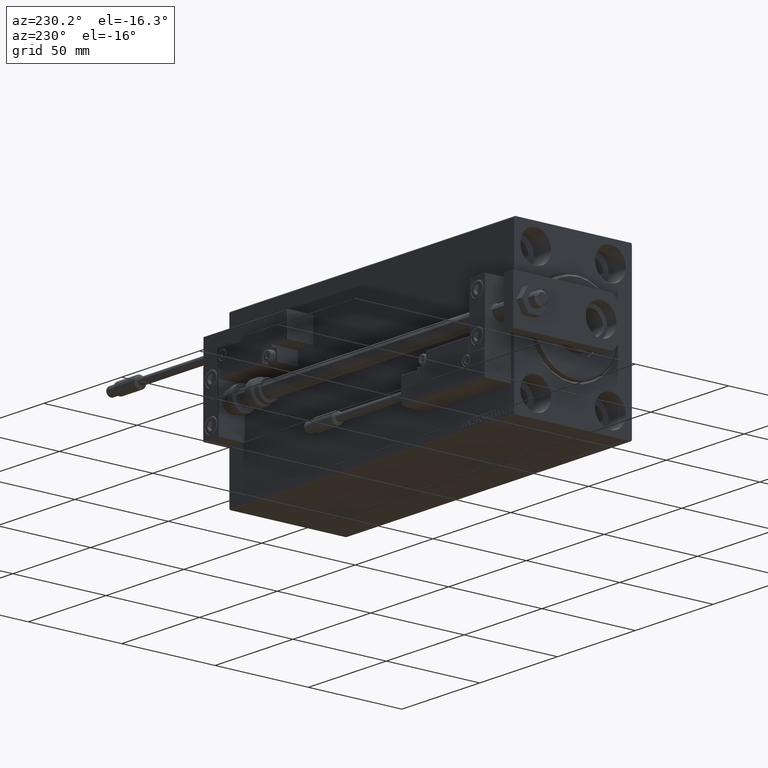
[diagram: clean part render]
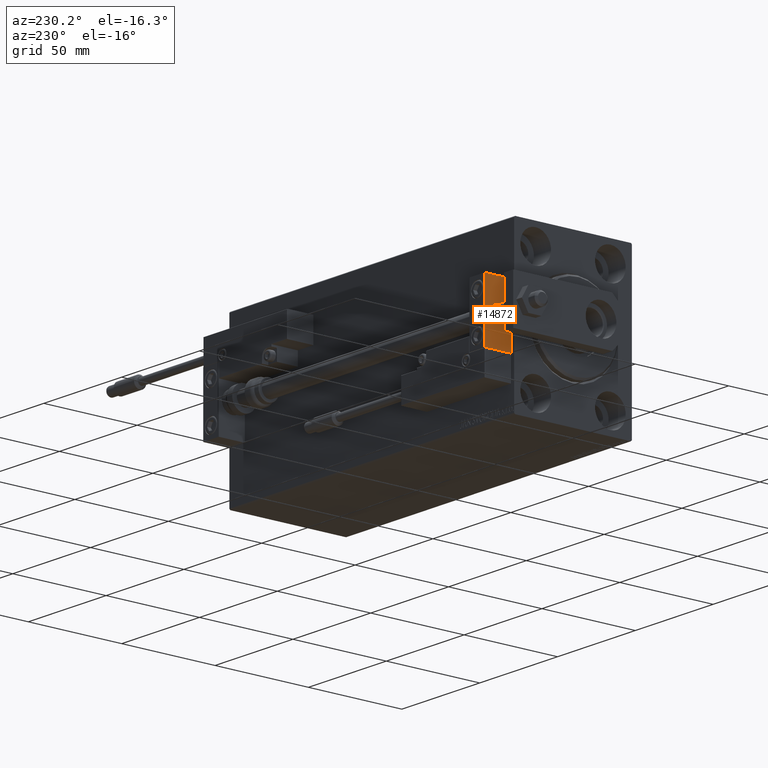
[diagram: same view with one face highlighted and labeled with its STEP entity id]
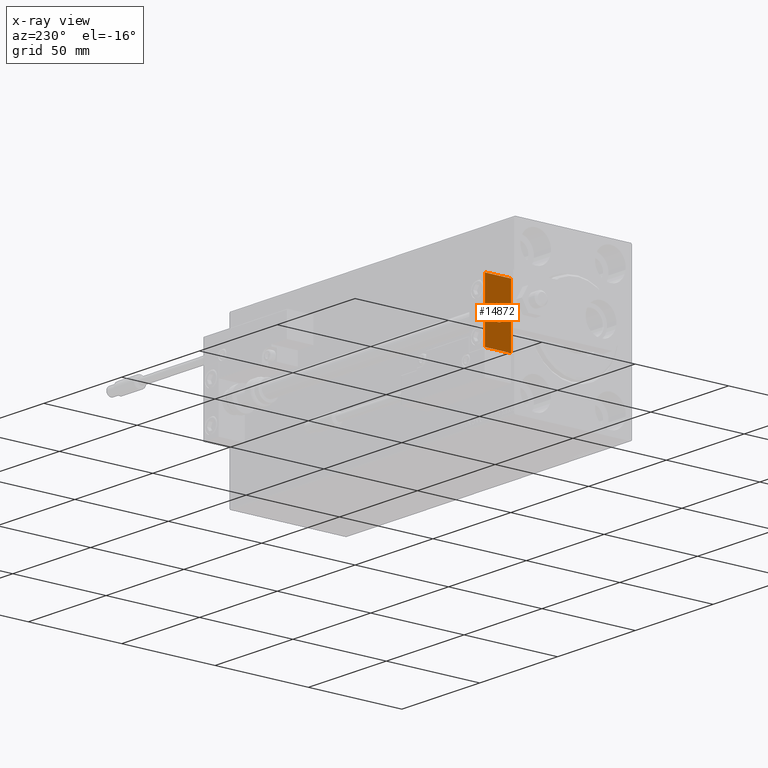
[diagram: x-ray of the same camera — body ghosted, the highlighted face saturated]
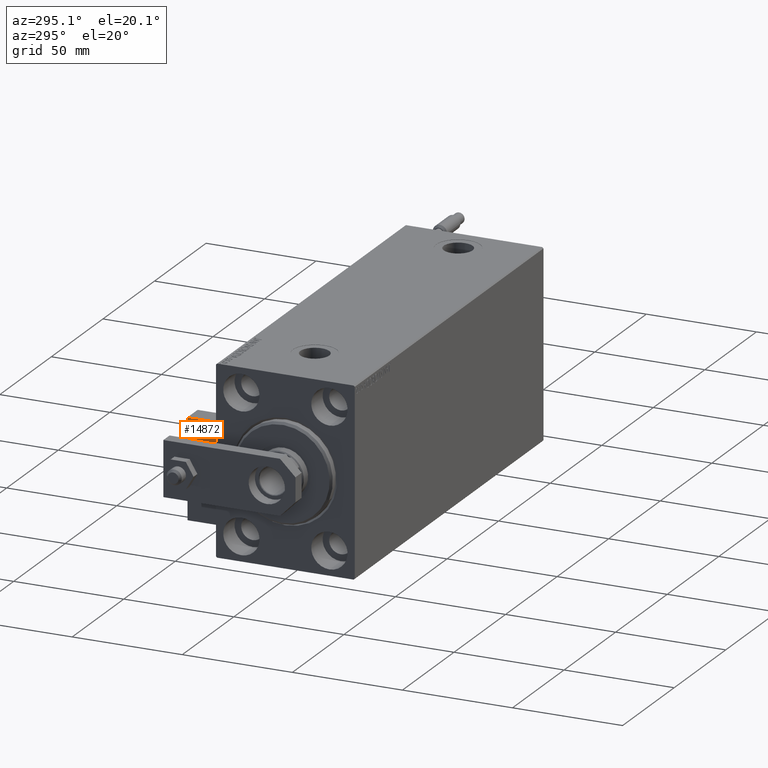
[diagram: same view with one face highlighted and labeled with its STEP entity id]
A machine part, auxiliary view. The second image highlights one B-rep face of the part: STEP entity #14872.
The next image is the same camera in x-ray: the body ghosted, the highlighted face saturated — about 0% of this face is hidden behind the body in this view.
A second angle (auxiliary view) of the same face is appended — the face is thin or edge-on in the first view.
In plain terms, the highlighted planar face has unit normal (1, 0, -0).
Its self-contained STEP definition (entity closure, byte-faithful):
#2277 = LINE ( 'NONE', #45264, #34801 ) ;
#2333 = DIRECTION ( 'NONE',  ( 0.000000000000000000, 0.000000000000000000, -1.000000000000000000 ) ) ;
#2439 = DIRECTION ( 'NONE',  ( -0.000000000000000000, 0.000000000000000000, 1.000000000000000000 ) ) ;
#2643 = VERTEX_POINT ( 'NONE', #47817 ) ;
#2727 = CARTESIAN_POINT ( 'NONE',  ( 10.00000000000000000, -7.000000000000000000, 15.99999999999999289 ) ) ;
#2886 = VERTEX_POINT ( 'NONE', #16535 ) ;
#3194 = FACE_OUTER_BOUND ( 'NONE', #37387, .T. ) ;
#3272 = VERTEX_POINT ( 'NONE', #5467 ) ;
#4312 = ORIENTED_EDGE ( 'NONE', *, *, #6016, .F. ) ;
#5136 = VECTOR ( 'NONE', #2333, 1000.000000000000000 ) ;
#5224 = EDGE_CURVE ( 'NONE', #35429, #2886, #2277, .T. ) ;
#5467 = CARTESIAN_POINT ( 'NONE',  ( 10.00000000000000000, 0.000000000000000000, 4.000000000000000000 ) ) ;
#6016 = EDGE_CURVE ( 'NONE', #2886, #27887, #44011, .T. ) ;
#6301 = ORIENTED_EDGE ( 'NONE', *, *, #46639, .T. ) ;
#6435 = LINE ( 'NONE', #37144, #5136 ) ;
#6557 = VERTEX_POINT ( 'NONE', #2727 ) ;
#8130 = CARTESIAN_POINT ( 'NONE',  ( 10.00000000000000000, -7.000000000000000000, -16.00000000000000711 ) ) ;
#8985 = AXIS2_PLACEMENT_3D ( 'NONE', #34944, #50567, #39034 ) ;
#9028 = CARTESIAN_POINT ( 'NONE',  ( 10.00000000000000000, 7.000000000000000000, 15.99999999999999289 ) ) ;
#10373 = CARTESIAN_POINT ( 'NONE',  ( 10.00000000000000000, 0.000000000000000000, 0.000000000000000000 ) ) ;
#10874 = DIRECTION ( 'NONE',  ( -1.000000000000000000, 0.000000000000000000, -0.000000000000000000 ) ) ;
#11254 = EDGE_CURVE ( 'NONE', #3272, #2643, #42246, .T. ) ;
#11414 = CARTESIAN_POINT ( 'NONE',  ( 10.00000000000000000, 7.000000000000000000, 15.99999999999999289 ) ) ;
#11580 = ORIENTED_EDGE ( 'NONE', *, *, #5224, .F. ) ;
#13722 = ORIENTED_EDGE ( 'NONE', *, *, #40980, .T. ) ;
#14488 = AXIS2_PLACEMENT_3D ( 'NONE', #31321, #40269, #46947 ) ;
#14872 = ADVANCED_FACE ( 'NONE', ( #37749, #3194 ), #42071, .F. ) ;
#16535 = CARTESIAN_POINT ( 'NONE',  ( 10.00000000000000000, 7.000000000000000000, -16.00000000000000711 ) ) ;
#17310 = EDGE_CURVE ( 'NONE', #2643, #3272, #22063, .T. ) ;
#22063 = CIRCLE ( 'NONE', #8985, 4.000000000000000000 ) ;
#22918 = VECTOR ( 'NONE', #42628, 1000.000000000000000 ) ;
#27887 = VERTEX_POINT ( 'NONE', #8130 ) ;
#31145 = ORIENTED_EDGE ( 'NONE', *, *, #17310, .T. ) ;
#31321 = CARTESIAN_POINT ( 'NONE',  ( 10.00000000000000000, 0.000000000000000000, 0.000000000000000000 ) ) ;
#31339 = ORIENTED_EDGE ( 'NONE', *, *, #11254, .T. ) ;
#34801 = VECTOR ( 'NONE', #41162, 1000.000000000000000 ) ;
#34944 = CARTESIAN_POINT ( 'NONE',  ( 10.00000000000000000, 0.000000000000000000, 0.000000000000000000 ) ) ;
#35429 = VERTEX_POINT ( 'NONE', #9028 ) ;
#36496 = VECTOR ( 'NONE', #44266, 1000.000000000000000 ) ;
#37144 = CARTESIAN_POINT ( 'NONE',  ( 10.00000000000000000, -7.000000000000000000, 15.99999999999999289 ) ) ;
#37387 = EDGE_LOOP ( 'NONE', ( #6301, #4312, #11580, #13722 ) ) ;
#37749 = FACE_BOUND ( 'NONE', #44740, .T. ) ;
#39034 = DIRECTION ( 'NONE',  ( 0.000000000000000000, 0.000000000000000000, 1.000000000000000000 ) ) ;
#40269 = DIRECTION ( 'NONE',  ( -1.000000000000000000, 0.000000000000000000, 0.000000000000000000 ) ) ;
#40980 = EDGE_CURVE ( 'NONE', #35429, #6557, #46475, .T. ) ;
#41162 = DIRECTION ( 'NONE',  ( 0.000000000000000000, 0.000000000000000000, -1.000000000000000000 ) ) ;
#42071 = PLANE ( 'NONE',  #50557 ) ;
#42246 = CIRCLE ( 'NONE', #14488, 4.000000000000000000 ) ;
#42628 = DIRECTION ( 'NONE',  ( 0.000000000000000000, -1.000000000000000000, 0.000000000000000000 ) ) ;
#44011 = LINE ( 'NONE', #48119, #36496 ) ;
#44266 = DIRECTION ( 'NONE',  ( 0.000000000000000000, -1.000000000000000000, 0.000000000000000000 ) ) ;
#44740 = EDGE_LOOP ( 'NONE', ( #31339, #31145 ) ) ;
#45264 = CARTESIAN_POINT ( 'NONE',  ( 10.00000000000000000, 7.000000000000000000, 15.99999999999999289 ) ) ;
#46475 = LINE ( 'NONE', #11414, #22918 ) ;
#46639 = EDGE_CURVE ( 'NONE', #6557, #27887, #6435, .T. ) ;
#46947 = DIRECTION ( 'NONE',  ( 0.000000000000000000, 0.000000000000000000, 1.000000000000000000 ) ) ;
#47817 = CARTESIAN_POINT ( 'NONE',  ( 10.00000000000000000, 4.898587196589412829E-16, -4.000000000000000000 ) ) ;
#48119 = CARTESIAN_POINT ( 'NONE',  ( 10.00000000000000000, 7.000000000000000000, -16.00000000000000711 ) ) ;
#50557 = AXIS2_PLACEMENT_3D ( 'NONE', #10373, #10874, #2439 ) ;
#50567 = DIRECTION ( 'NONE',  ( -1.000000000000000000, 0.000000000000000000, 0.000000000000000000 ) ) ;